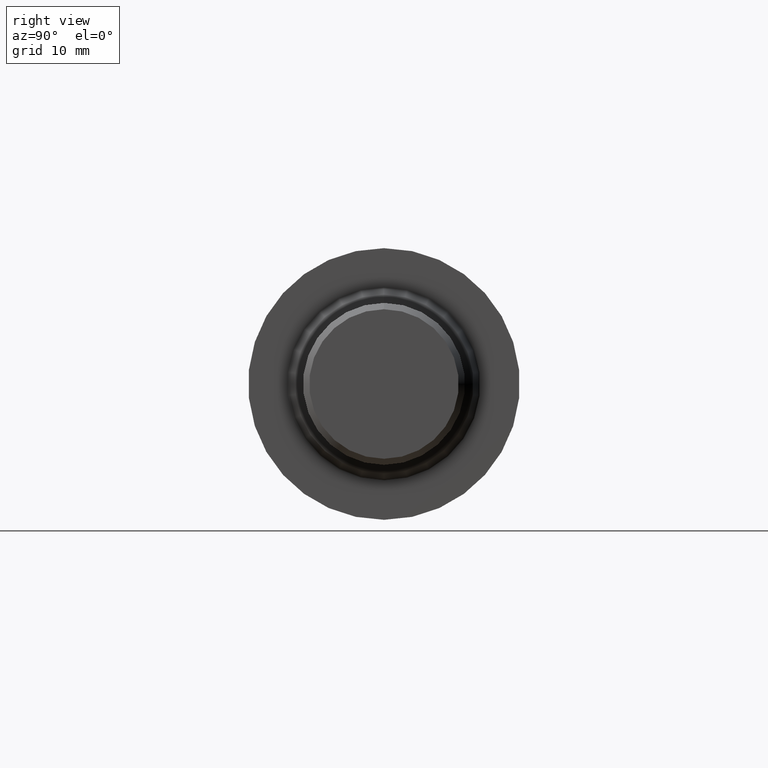
[diagram: clean part render]
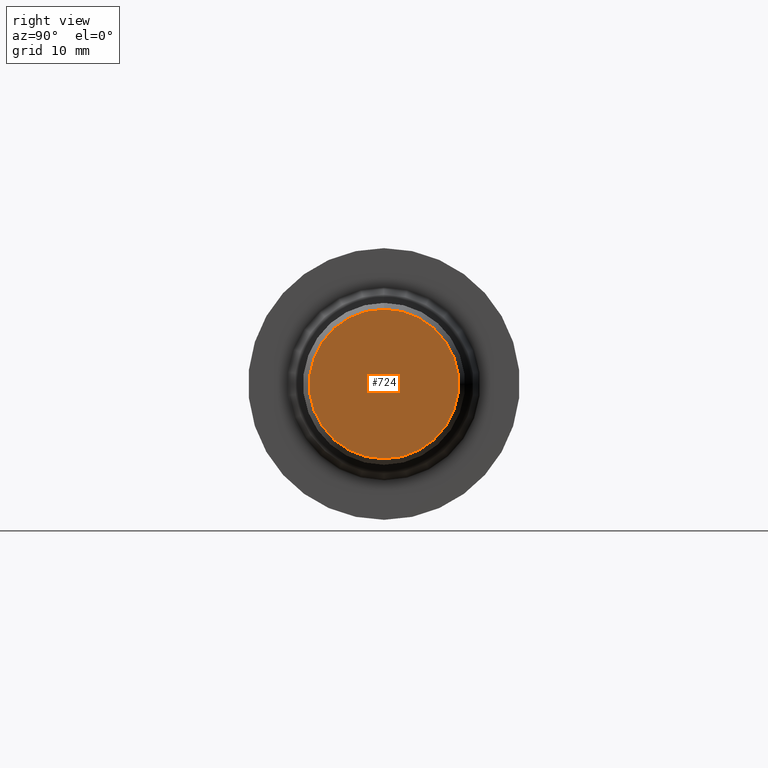
[diagram: same view with one face highlighted and labeled with its STEP entity id]
A machine part, right view. The second image highlights one B-rep face of the part: STEP entity #724.
In plain terms, the highlighted planar face has unit normal (-1, 0, -0).
Its self-contained STEP definition (entity closure, byte-faithful):
#3 = CARTESIAN_POINT ( 'NONE',  ( 3.750000000000000000, 0.0000000000000000000, 0.4499722325026741521 ) ) ;
#25 = CARTESIAN_POINT ( 'NONE',  ( 3.750000000000000000, 0.0000000000000000000, 0.0000000000000000000 ) ) ;
#80 = DIRECTION ( 'NONE',  ( 0.0000000000000000000, 0.0000000000000000000, 1.000000000000000000 ) ) ;
#86 = DIRECTION ( 'NONE',  ( -1.000000000000000000, 0.0000000000000000000, -0.0000000000000000000 ) ) ;
#131 = EDGE_CURVE ( 'NONE', #697, #325, #610, .T. ) ;
#182 = CARTESIAN_POINT ( 'NONE',  ( 3.750000000000000000, 0.0000000000000000000, 0.0000000000000000000 ) ) ;
#188 = FACE_OUTER_BOUND ( 'NONE', #657, .T. ) ;
#247 = DIRECTION ( 'NONE',  ( 0.0000000000000000000, 0.0000000000000000000, 1.000000000000000000 ) ) ;
#257 = ORIENTED_EDGE ( 'NONE', *, *, #609, .F. ) ;
#275 = DIRECTION ( 'NONE',  ( -0.0000000000000000000, 0.0000000000000000000, 1.000000000000000000 ) ) ;
#288 = AXIS2_PLACEMENT_3D ( 'NONE', #182, #634, #247 ) ;
#301 = CIRCLE ( 'NONE', #341, 0.4499722325026741521 ) ;
#325 = VERTEX_POINT ( 'NONE', #580 ) ;
#341 = AXIS2_PLACEMENT_3D ( 'NONE', #25, #814, #80 ) ;
#344 = PLANE ( 'NONE',  #693 ) ;
#351 = CARTESIAN_POINT ( 'NONE',  ( 3.750000000000000000, 0.4499722325026741521, 0.0000000000000000000 ) ) ;
#580 = CARTESIAN_POINT ( 'NONE',  ( 3.750000000000000000, 5.740361844119616608E-17, -0.4499722325026741521 ) ) ;
#609 = EDGE_CURVE ( 'NONE', #325, #697, #301, .T. ) ;
#610 = CIRCLE ( 'NONE', #288, 0.4499722325026741521 ) ;
#634 = DIRECTION ( 'NONE',  ( -1.000000000000000000, -0.0000000000000000000, -0.0000000000000000000 ) ) ;
#657 = EDGE_LOOP ( 'NONE', ( #679, #257 ) ) ;
#679 = ORIENTED_EDGE ( 'NONE', *, *, #131, .F. ) ;
#693 = AXIS2_PLACEMENT_3D ( 'NONE', #351, #86, #275 ) ;
#697 = VERTEX_POINT ( 'NONE', #3 ) ;
#724 = ADVANCED_FACE ( 'NONE', ( #188 ), #344, .F. ) ;
#814 = DIRECTION ( 'NONE',  ( -1.000000000000000000, -0.0000000000000000000, -0.0000000000000000000 ) ) ;